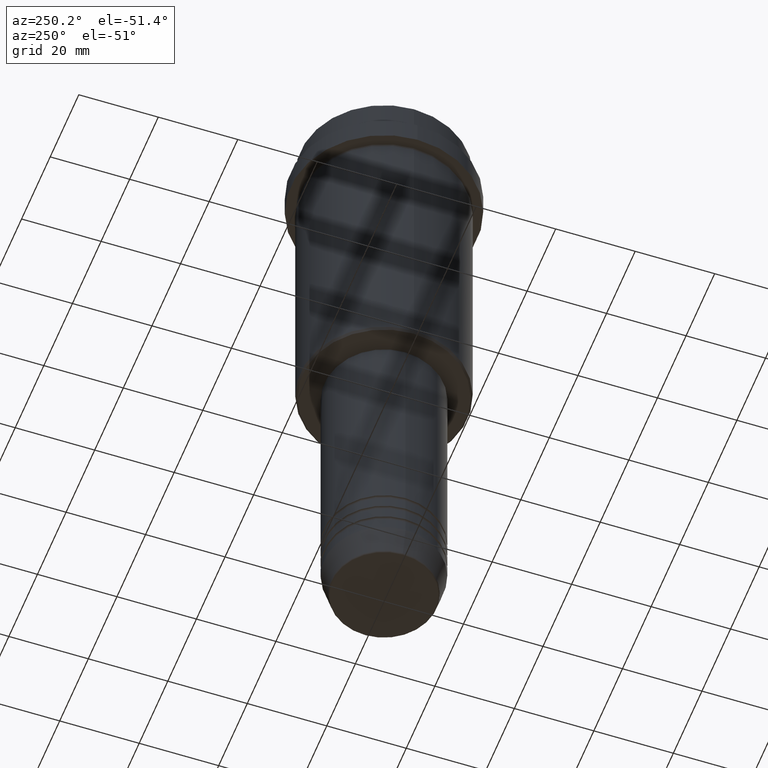
[diagram: clean part render]
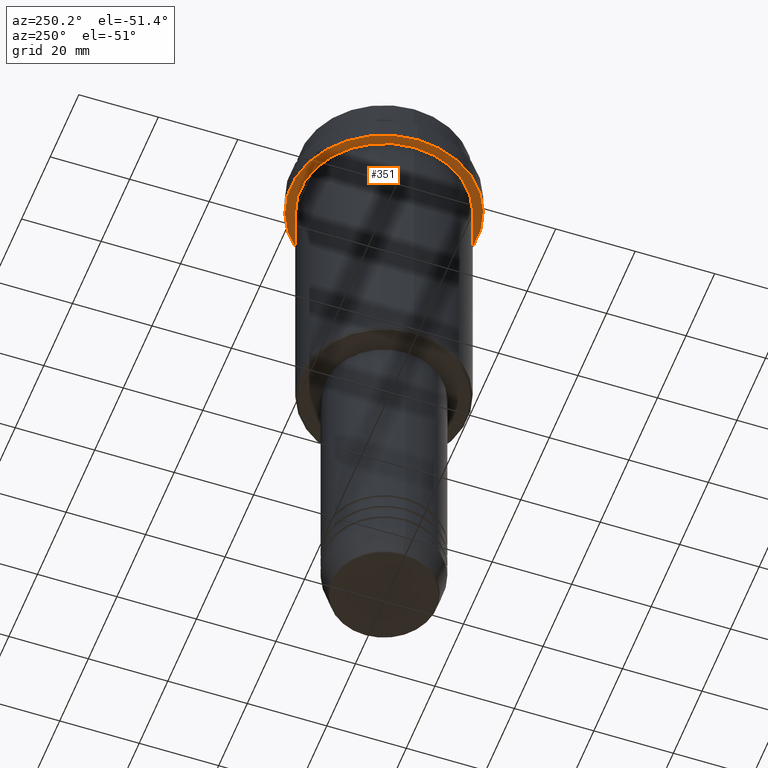
[diagram: same view with one face highlighted and labeled with its STEP entity id]
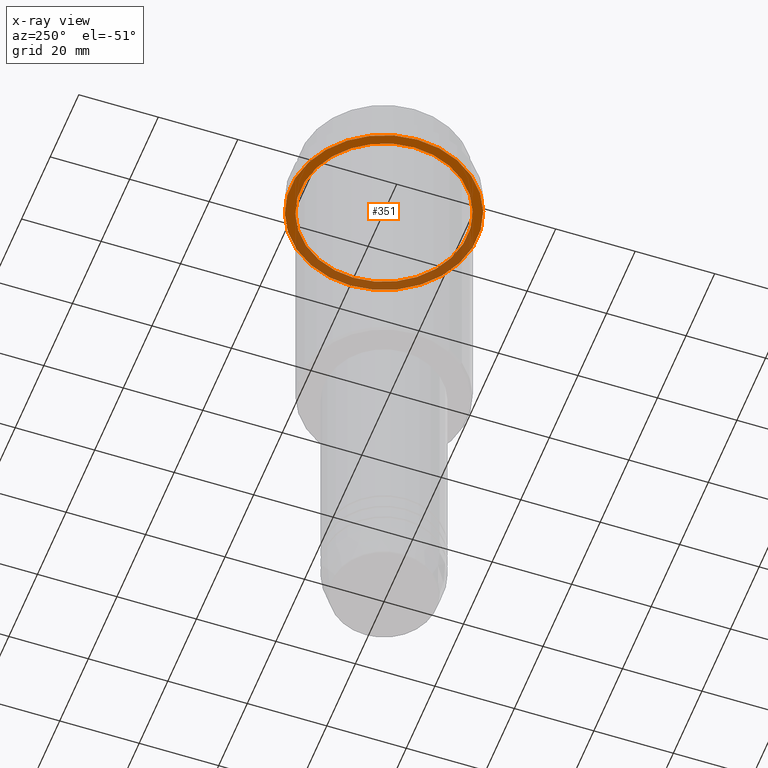
[diagram: x-ray of the same camera — body ghosted, the highlighted face saturated]
A machine part, auxiliary view. The second image highlights one B-rep face of the part: STEP entity #351.
The next image is the same camera in x-ray: the body ghosted, the highlighted face saturated — about 39% of this face is hidden behind the body in this view.
In plain terms, the highlighted planar face has unit normal (0, 0, -1).
Its self-contained STEP definition (entity closure, byte-faithful):
#27 = CARTESIAN_POINT ( 'NONE',  ( -23.50000000000000711, 2.877919977996281109E-15, -15.00000000000000000 ) ) ;
#62 = FACE_OUTER_BOUND ( 'NONE', #681, .T. ) ;
#187 = AXIS2_PLACEMENT_3D ( 'NONE', #524, #284, #399 ) ;
#188 = DIRECTION ( 'NONE',  ( 1.000000000000000000, 0.000000000000000000, 0.000000000000000000 ) ) ;
#194 = DIRECTION ( 'NONE',  ( -0.000000000000000000, -0.000000000000000000, 1.000000000000000000 ) ) ;
#274 = AXIS2_PLACEMENT_3D ( 'NONE', #492, #1070, #851 ) ;
#276 = CIRCLE ( 'NONE', #677, 20.99999999999999289 ) ;
#284 = DIRECTION ( 'NONE',  ( -0.000000000000000000, -0.000000000000000000, 1.000000000000000000 ) ) ;
#291 = DIRECTION ( 'NONE',  ( -1.000000000000000000, 0.000000000000000000, 0.000000000000000000 ) ) ;
#307 = CARTESIAN_POINT ( 'NONE',  ( -20.99999999999999289, 0.000000000000000000, -15.00000000000000178 ) ) ;
#311 = EDGE_CURVE ( 'NONE', #539, #927, #640, .T. ) ;
#314 = ORIENTED_EDGE ( 'NONE', *, *, #802, .T. ) ;
#351 = ADVANCED_FACE ( 'NONE', ( #1404, #62 ), #610, .T. ) ;
#375 = ORIENTED_EDGE ( 'NONE', *, *, #1137, .F. ) ;
#399 = DIRECTION ( 'NONE',  ( 1.000000000000000000, 0.000000000000000000, 0.000000000000000000 ) ) ;
#401 = CARTESIAN_POINT ( 'NONE',  ( 0.000000000000000000, 0.000000000000000000, -15.00000000000000178 ) ) ;
#492 = CARTESIAN_POINT ( 'NONE',  ( 0.000000000000000000, 23.50000000000000355, -15.00000000000000178 ) ) ;
#510 = DIRECTION ( 'NONE',  ( -1.000000000000000000, 0.000000000000000000, 0.000000000000000000 ) ) ;
#524 = CARTESIAN_POINT ( 'NONE',  ( 0.000000000000000000, 0.000000000000000000, -15.00000000000000000 ) ) ;
#539 = VERTEX_POINT ( 'NONE', #307 ) ;
#555 = ORIENTED_EDGE ( 'NONE', *, *, #768, .F. ) ;
#559 = EDGE_LOOP ( 'NONE', ( #1114, #314 ) ) ;
#610 = PLANE ( 'NONE',  #274 ) ;
#640 = CIRCLE ( 'NONE', #1308, 20.99999999999999289 ) ;
#677 = AXIS2_PLACEMENT_3D ( 'NONE', #401, #946, #291 ) ;
#681 = EDGE_LOOP ( 'NONE', ( #555, #375 ) ) ;
#698 = AXIS2_PLACEMENT_3D ( 'NONE', #1374, #194, #188 ) ;
#768 = EDGE_CURVE ( 'NONE', #1105, #1031, #1327, .T. ) ;
#802 = EDGE_CURVE ( 'NONE', #927, #539, #276, .T. ) ;
#851 = DIRECTION ( 'NONE',  ( -1.000000000000000000, 0.000000000000000000, -0.000000000000000000 ) ) ;
#927 = VERTEX_POINT ( 'NONE', #1094 ) ;
#946 = DIRECTION ( 'NONE',  ( -0.000000000000000000, -0.000000000000000000, 1.000000000000000000 ) ) ;
#1030 = CARTESIAN_POINT ( 'NONE',  ( 23.50000000000000355, 0.000000000000000000, -15.00000000000000000 ) ) ;
#1031 = VERTEX_POINT ( 'NONE', #27 ) ;
#1070 = DIRECTION ( 'NONE',  ( 0.000000000000000000, 0.000000000000000000, -1.000000000000000000 ) ) ;
#1094 = CARTESIAN_POINT ( 'NONE',  ( 20.99999999999999289, 2.571758278209440872E-15, -15.00000000000000178 ) ) ;
#1105 = VERTEX_POINT ( 'NONE', #1030 ) ;
#1114 = ORIENTED_EDGE ( 'NONE', *, *, #311, .T. ) ;
#1137 = EDGE_CURVE ( 'NONE', #1031, #1105, #1349, .T. ) ;
#1174 = DIRECTION ( 'NONE',  ( -0.000000000000000000, -0.000000000000000000, 1.000000000000000000 ) ) ;
#1308 = AXIS2_PLACEMENT_3D ( 'NONE', #1375, #1174, #510 ) ;
#1327 = CIRCLE ( 'NONE', #698, 23.50000000000000355 ) ;
#1349 = CIRCLE ( 'NONE', #187, 23.50000000000000355 ) ;
#1374 = CARTESIAN_POINT ( 'NONE',  ( 0.000000000000000000, 0.000000000000000000, -15.00000000000000000 ) ) ;
#1375 = CARTESIAN_POINT ( 'NONE',  ( 0.000000000000000000, 0.000000000000000000, -15.00000000000000178 ) ) ;
#1404 = FACE_BOUND ( 'NONE', #559, .T. ) ;